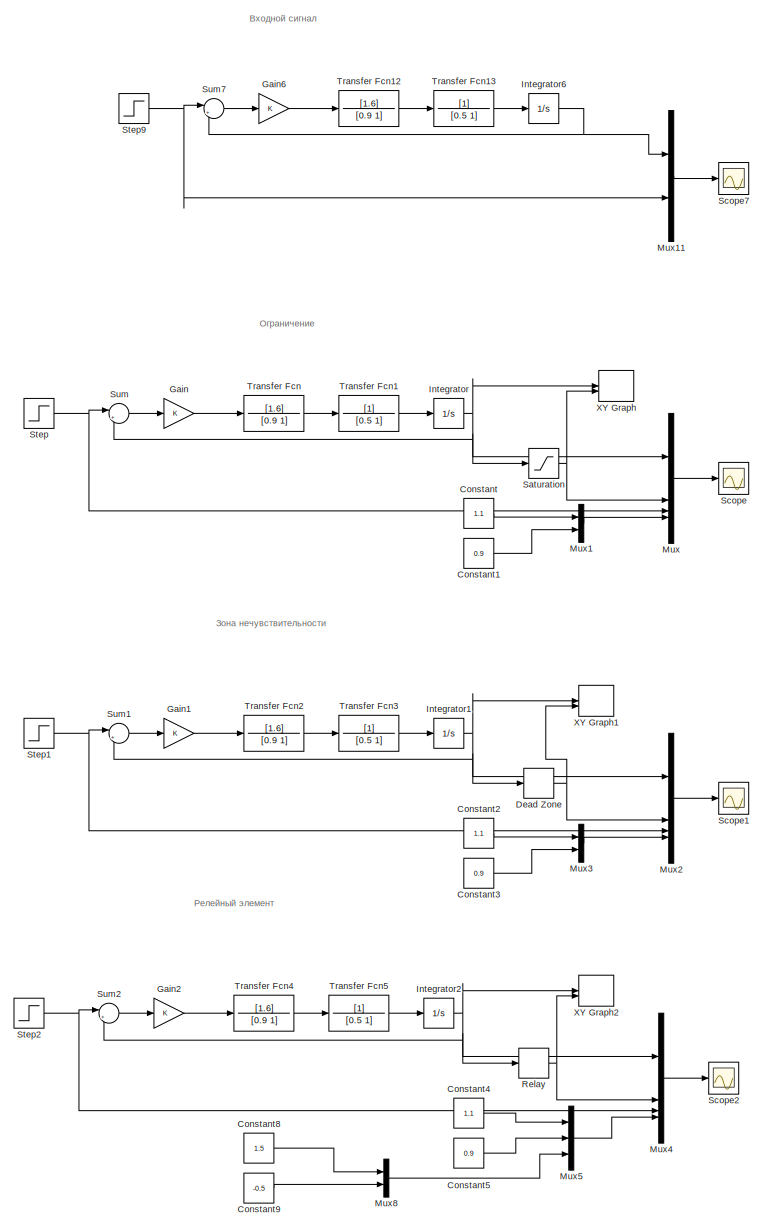
[diagram: root canvas - part 1/2, full width, top band]
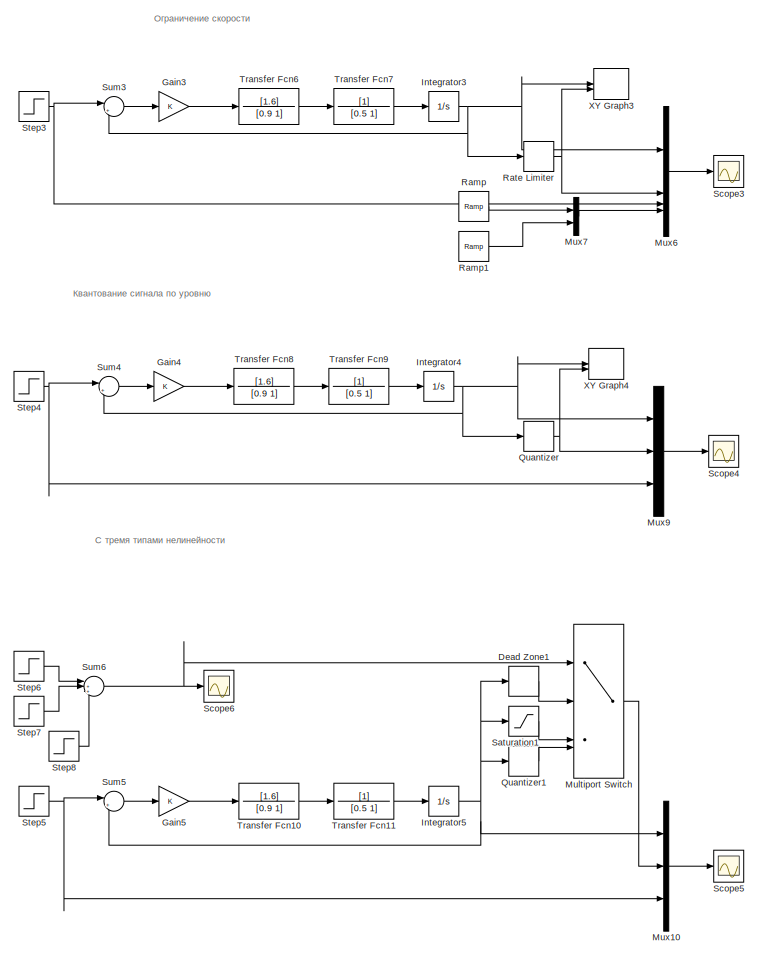
[diagram: root canvas - part 2/2, full width, bottom band]
MODEL slx_9a68090f63fd
KIND model
CONFIG AbsTol = auto
CONFIG EnableMultiTasking = off
CONFIG FixedStep = auto
CONFIG MaxStep = auto
CONFIG MinStep = auto
CONFIG RelTol = 1e-3
CONFIG SampleTimeConstraint = Unconstrained
CONFIG SolverName = VariableStepAuto
CONFIG StartTime = 0.0
CONFIG StopTime = 30
BLOCK [Constant] Constant
  Value = 1.1
BLOCK [Constant] Constant1
  Value = 0.9
BLOCK [Constant] Constant2
  Value = 1.1
BLOCK [Constant] Constant3
  Value = 0.9
BLOCK [Constant] Constant4
  Value = 1.1
BLOCK [Constant] Constant5
  Value = 0.9
BLOCK [Constant] Constant8
  Value = 1.5
BLOCK [Constant] Constant9
  Value = -0.5
BLOCK [DeadZone] Dead Zone
  LowerValue = 0.9
  UpperValue = 1.1
BLOCK [DeadZone] Dead Zone1
  LowerValue = 0.9
  UpperValue = 1.1
BLOCK [Gain] Gain
BLOCK [Gain] Gain1
BLOCK [Gain] Gain2
BLOCK [Gain] Gain3
BLOCK [Gain] Gain4
BLOCK [Gain] Gain5
BLOCK [Gain] Gain6
BLOCK [Integrator] Integrator
BLOCK [Integrator] Integrator1
BLOCK [Integrator] Integrator2
BLOCK [Integrator] Integrator3
BLOCK [Integrator] Integrator4
BLOCK [Integrator] Integrator5
BLOCK [Integrator] Integrator6
BLOCK [MultiPortSwitch] Multiport Switch
  InputSameDT = off
  SaturateOnIntegerOverflow = off
BLOCK [Mux] Mux
  DisplayOption = bar
BLOCK [Mux] Mux1
  DisplayOption = bar
  Inputs = 2
BLOCK [Mux] Mux10
  DisplayOption = bar
  Inputs = 3
BLOCK [Mux] Mux11
  DisplayOption = bar
  Inputs = 2
BLOCK [Mux] Mux2
  DisplayOption = bar
BLOCK [Mux] Mux3
  DisplayOption = bar
  Inputs = 2
BLOCK [Mux] Mux4
  DisplayOption = bar
BLOCK [Mux] Mux5
  DisplayOption = bar
  Inputs = 3
BLOCK [Mux] Mux6
  DisplayOption = bar
BLOCK [Mux] Mux7
  DisplayOption = bar
  Inputs = 2
BLOCK [Mux] Mux8
  DisplayOption = bar
  Inputs = 2
BLOCK [Mux] Mux9
  DisplayOption = bar
  Inputs = 3
BLOCK [Quantizer] Quantizer
  QuantizationInterval = 0.2
BLOCK [Quantizer] Quantizer1
  QuantizationInterval = 0.2
BLOCK [Reference] Ramp  REF=simulink/Sources/Ramp
  SourceBlock = simulink/Sources/Ramp
  SourceType = Ramp
BLOCK [Reference] Ramp1  REF=simulink/Sources/Ramp
  SourceBlock = simulink/Sources/Ramp
  SourceType = Ramp
BLOCK [RateLimiter] Rate Limiter
  FallingSlewLimit = -0.15
  RisingSlewLimit = 0.3
  SampleTimeMode = inherited
BLOCK [Relay] Relay
  OffOutputValue = -0.5
  OffSwitchValue = 0.9
  OnOutputValue = 1.5
  OnSwitchValue = 1.1
BLOCK [Saturate] Saturation
  LowerLimit = 0.9
  UpperLimit = 1.1
BLOCK [Saturate] Saturation1
  LowerLimit = 0.9
  UpperLimit = 1.1
BLOCK [Scope] Scope
  Floating = off
  NumInputPorts = 1
  ScopeSpecificationString = Simulink.scopes.TimeScopeBlockCfg('CurrentConfiguration', extmgr.ConfigurationSet(extmgr.Configuration('Core','General UI',true,'FigureColor',[1 1 1]),extmgr.Configuration('Core','Source UI',true),extmgr.Configuration('Sources','WiredSimulink',true),extmgr.Configuration('Visuals','Time Domain',true,'SerializedDisplays',{struct('MinYLimReal','-0.19648','MaxYLimReal','1.76835','YLabelReal','','MinYL...<+2006ch>
BLOCK [Scope] Scope1
  Floating = off
  NumInputPorts = 1
  ScopeSpecificationString = Simulink.scopes.TimeScopeBlockCfg('CurrentConfiguration', extmgr.ConfigurationSet(extmgr.Configuration('Core','General UI',true,'FigureColor',[1 1 1]),extmgr.Configuration('Core','Source UI',true),extmgr.Configuration('Sources','WiredSimulink',true,'DataLoggingVariableName','ScopeData1'),extmgr.Configuration('Visuals','Time Domain',true,'SerializedDisplays',{struct('MinYLimReal','-1.20898','MaxYLi...<+2047ch>
BLOCK [Scope] Scope2
  Floating = off
  NumInputPorts = 1
  ScopeSpecificationString = Simulink.scopes.TimeScopeBlockCfg('CurrentConfiguration', extmgr.ConfigurationSet(extmgr.Configuration('Core','General UI',true,'FigureColor',[1 1 1]),extmgr.Configuration('Core','Source UI',true),extmgr.Configuration('Sources','WiredSimulink',true,'DataLoggingVariableName','ScopeData2'),extmgr.Configuration('Visuals','Time Domain',true,'SerializedDisplays',{struct('MinYLimReal','-0.75898','MaxYLi...<+2244ch>
BLOCK [Scope] Scope3
  Floating = off
  NumInputPorts = 1
  ScopeSpecificationString = Simulink.scopes.TimeScopeBlockCfg('CurrentConfiguration', extmgr.ConfigurationSet(extmgr.Configuration('Core','General UI',true,'FigureColor',[1 1 1]),extmgr.Configuration('Core','Source UI',true),extmgr.Configuration('Sources','WiredSimulink',true,'DataLoggingVariableName','ScopeData3'),extmgr.Configuration('Visuals','Time Domain',true,'SerializedDisplays',{struct('MinYLimReal','-0.2086','MaxYLim...<+2082ch>
BLOCK [Scope] Scope4
  Floating = off
  NumInputPorts = 1
  ScopeSpecificationString = Simulink.scopes.TimeScopeBlockCfg('CurrentConfiguration', extmgr.ConfigurationSet(extmgr.Configuration('Core','General UI',true,'FigureColor',[1 1 1]),extmgr.Configuration('Core','Source UI',true),extmgr.Configuration('Sources','WiredSimulink',true,'DataLoggingVariableName','ScopeData1','SampleTime','0.001'),extmgr.Configuration('Visuals','Time Domain',true,'SerializedDisplays',{struct('MinYLimRea...<+2086ch>
BLOCK [Scope] Scope5
  Floating = off
  NumInputPorts = 1
  ScopeSpecificationString = Simulink.scopes.TimeScopeBlockCfg('CurrentConfiguration', extmgr.ConfigurationSet(extmgr.Configuration('Core','General UI',true,'FigureColor',[1 1 1]),extmgr.Configuration('Core','Source UI',true),extmgr.Configuration('Sources','WiredSimulink',true,'DataLoggingVariableName','ScopeData2','SampleTime','0.001'),extmgr.Configuration('Visuals','Time Domain',true,'SerializedDisplays',{struct('MinYLimRea...<+2208ch>
BLOCK [Scope] Scope6
  Floating = off
  NumInputPorts = 1
  ScopeSpecificationString = Simulink.scopes.TimeScopeBlockCfg('CurrentConfiguration', extmgr.ConfigurationSet(extmgr.Configuration('Core','General UI',true,'FigureColor',[1 1 1]),extmgr.Configuration('Core','Source UI',true),extmgr.Configuration('Sources','WiredSimulink',true,'DataLoggingVariableName','ScopeData3','SampleTime','0.001'),extmgr.Configuration('Visuals','Time Domain',true,'SerializedDisplays',{struct('MinYLimRea...<+2268ch>
BLOCK [Scope] Scope7
  Floating = off
  NumInputPorts = 1
  ScopeSpecificationString = Simulink.scopes.TimeScopeBlockCfg('CurrentConfiguration', extmgr.ConfigurationSet(extmgr.Configuration('Core','General UI',true,'FigureColor',[1 1 1]),extmgr.Configuration('Core','Source UI',true),extmgr.Configuration('Sources','WiredSimulink',true,'DataLoggingVariableName','ScopeData1'),extmgr.Configuration('Visuals','Time Domain',true,'SerializedDisplays',{struct('MinYLimReal','-0.19648','MaxYLi...<+2026ch>
BLOCK [Step] Step
  SampleTime = 0
  Time = 0
BLOCK [Step] Step1
  SampleTime = 0
  Time = 0
BLOCK [Step] Step2
  SampleTime = 0
  Time = 0
BLOCK [Step] Step3
  SampleTime = 0
  Time = 0
BLOCK [Step] Step4
  SampleTime = 0
  Time = 0
BLOCK [Step] Step5
  SampleTime = 0
  Time = 0
BLOCK [Step] Step6
  SampleTime = 0
  Time = 0
BLOCK [Step] Step7
  SampleTime = 0
  Time = 10
BLOCK [Step] Step8
  SampleTime = 0
  Time = 20
BLOCK [Step] Step9
  SampleTime = 0
  Time = 0
BLOCK [Sum] Sum
  Inputs = |+-
BLOCK [Sum] Sum1
  Inputs = |+-
BLOCK [Sum] Sum2
  Inputs = |+-
BLOCK [Sum] Sum3
  Inputs = |+-
BLOCK [Sum] Sum4
  Inputs = |+-
BLOCK [Sum] Sum5
  Inputs = |+-
BLOCK [Sum] Sum6
  Inputs = |+++
BLOCK [Sum] Sum7
  Inputs = |+-
BLOCK [TransferFcn] Transfer Fcn
  Denominator = [0.9 1]
  Numerator = [1.6]
BLOCK [TransferFcn] Transfer Fcn1
  Denominator = [0.5 1]
BLOCK [TransferFcn] Transfer Fcn10
  Denominator = [0.9 1]
  Numerator = [1.6]
BLOCK [TransferFcn] Transfer Fcn11
  Denominator = [0.5 1]
BLOCK [TransferFcn] Transfer Fcn12
  Denominator = [0.9 1]
  Numerator = [1.6]
BLOCK [TransferFcn] Transfer Fcn13
  Denominator = [0.5 1]
BLOCK [TransferFcn] Transfer Fcn2
  Denominator = [0.9 1]
  Numerator = [1.6]
BLOCK [TransferFcn] Transfer Fcn3
  Denominator = [0.5 1]
BLOCK [TransferFcn] Transfer Fcn4
  Denominator = [0.9 1]
  Numerator = [1.6]
BLOCK [TransferFcn] Transfer Fcn5
  Denominator = [0.5 1]
BLOCK [TransferFcn] Transfer Fcn6
  Denominator = [0.9 1]
  Numerator = [1.6]
BLOCK [TransferFcn] Transfer Fcn7
  Denominator = [0.5 1]
BLOCK [TransferFcn] Transfer Fcn8
  Denominator = [0.9 1]
  Numerator = [1.6]
BLOCK [TransferFcn] Transfer Fcn9
  Denominator = [0.5 1]
BLOCK [Record] XY Graph
  CompatibilityTag = XY
  FileSettingsInternal = {"entries":[{"content":{"excelSettings":{"content":{},"type":"Streamout.ExcelSettings"}},"type":"Streamout.FileSettingStorage","uuid":""}],"packageUris":["http:\/\/schema.mathworks.com\/mf0\/streamout_blocks\/R2020a"],"version":"1.0"}  <repeated x5 — deduplicated; at blocks: XY Graph, XY Graph1, XY Graph2, XY Graph3, XY Graph4>
  Layout = [1 1]
  SignalsInternal = {"entries":[{"content":{"signals":[{"content":{"blockPath":[],"dimensions":[1],"domain":"","lineColor":"#a2142f","plots":[1],"port":1,"sid":[""],"signalID":423,"signalName":"Integrator"},"type":"RecordBlkView.Signal","uuid":""},{"content":{"blockPath":[],"dimensions":[1],"domain":"","lineColor":"#139fff","plots":[1],"port":2,"sid":[""],"signalID":427,"signalName":"Saturation"},"type":"RecordBlkVie...<+166ch>
  VisualizationBindings = {"xyplotplugin":{"info":[{"series":[{"bindingParametersList":[{"parameter":"X-Axis","signalID":423,"signalName":"Integrator"},{"parameter":"Y-Axis","signalID":427,"signalName":"Saturation"}],"seriesID":18161}],"subplotID":1}]}}
BLOCK [Record] XY Graph1
  CompatibilityTag = XY
  Layout = [1 1]
  SignalsInternal = {"entries":[{"content":{"signals":[{"content":{"blockPath":[],"dimensions":[1],"domain":"","lineColor":"#a2142f","plots":[1],"port":1,"sid":[""],"signalID":431,"signalName":"Integrator1"},"type":"RecordBlkView.Signal","uuid":""},{"content":{"blockPath":[],"dimensions":[1],"domain":"","lineColor":"#139fff","plots":[1],"port":2,"sid":[""],"signalID":435,"signalName":"Dead Zone"},"type":"RecordBlkVie...<+166ch>
  VisualizationBindings = {"xyplotplugin":{"info":[{"series":[{"bindingParametersList":[{"parameter":"X-Axis","signalID":431,"signalName":"Integrator1"},{"parameter":"Y-Axis","signalID":435,"signalName":"Dead Zone"}],"seriesID":10553},{"bindingParametersList":[{"parameter":"X-Axis","signalID":431,"signalName":"Integrator1"},{"parameter":"Y-Axis","signalID":435,"signalName":"Dead Zone"}],"seriesID":8487}],"subplotID":1}]}}
BLOCK [Record] XY Graph2
  CompatibilityTag = XY
  Layout = [1 1]
  SignalsInternal = {"entries":[{"content":{"signals":[{"content":{"blockPath":[],"dimensions":[1],"domain":"","lineColor":"#a2142f","plots":[1],"port":1,"sid":[""],"signalID":439,"signalName":"Integrator2"},"type":"RecordBlkView.Signal","uuid":""},{"content":{"blockPath":[],"dimensions":[1],"domain":"","lineColor":"#139fff","plots":[1],"port":2,"sid":[""],"signalID":443,"signalName":"Relay"},"type":"RecordBlkView.Si...<+162ch>
  VisualizationBindings = {"xyplotplugin":{"info":[{"series":[{"bindingParametersList":[{"parameter":"X-Axis","signalID":439,"signalName":"Integrator2"},{"parameter":"Y-Axis","signalID":443,"signalName":"Relay"}],"seriesID":18363},{"bindingParametersList":[{"parameter":"X-Axis","signalID":443,"signalName":"Relay"}],"seriesID":436}],"subplotID":1}]}}
BLOCK [Record] XY Graph3
  CompatibilityTag = XY
  Layout = [1 1]
  SignalsInternal = {"entries":[{"content":{"signals":[{"content":{"blockPath":[],"dimensions":[1],"domain":"","lineColor":"#a2142f","plots":[1],"port":1,"sid":[""],"signalID":447,"signalName":"Integrator3"},"type":"RecordBlkView.Signal","uuid":""},{"content":{"blockPath":[],"dimensions":[1],"domain":"","lineColor":"#139fff","plots":[1],"port":2,"sid":[""],"signalID":451,"signalName":"Rate Limiter"},"type":"RecordBlk...<+169ch>
  VisualizationBindings = {"xyplotplugin":{"info":[{"series":[{"bindingParametersList":[{"parameter":"X-Axis","signalID":447,"signalName":"Integrator3"},{"parameter":"Y-Axis","signalID":451,"signalName":"Rate Limiter"}],"seriesID":46871},{"bindingParametersList":[{"parameter":"X-Axis","signalID":451,"signalName":"Rate Limiter"}],"seriesID":436}],"subplotID":1}]}}
BLOCK [Record] XY Graph4
  CompatibilityTag = XY
  Layout = [1 1]
  SignalsInternal = {"entries":[{"content":{"signals":[{"content":{"blockPath":[],"dimensions":[1],"domain":"","lineColor":"#a2142f","plots":[1],"port":1,"sid":[""],"signalID":455,"signalName":"Integrator4"},"type":"RecordBlkView.Signal","uuid":""},{"content":{"blockPath":[],"dimensions":[1],"domain":"","lineColor":"#139fff","plots":[1],"port":2,"sid":[""],"signalID":459,"signalName":"Quantizer"},"type":"RecordBlkVie...<+166ch>
  VisualizationBindings = {"xyplotplugin":{"info":[{"series":[{"bindingParametersList":[{"parameter":"X-Axis","signalID":455,"signalName":"Integrator4"},{"parameter":"Y-Axis","signalID":459,"signalName":"Quantizer"}],"seriesID":11349},{"bindingParametersList":[{"parameter":"X-Axis","signalID":459,"signalName":"Quantizer"}],"seriesID":436}],"subplotID":1}]}}
ANNOTATION (root): Входной сигнал
ANNOTATION (root): Зона нечувствительности
ANNOTATION (root): Квантование сигнала по уровню
ANNOTATION (root): Ограничение скорости
ANNOTATION (root): Ограничение
ANNOTATION (root): Релейный элемент
ANNOTATION (root): С тремя типами нелинейности
LINE Constant1:1 -> Mux1:2
LINE Constant2:1 -> Mux3:1
LINE Constant3:1 -> Mux3:2
LINE Constant4:1 -> Mux5:1
LINE Constant5:1 -> Mux5:2
LINE Constant8:1 -> Mux8:1
LINE Constant9:1 -> Mux8:2
LINE Constant:1 -> Mux1:1
LINE Dead Zone1:1 -> Multiport Switch:2
NET Dead Zone:1 -> Mux2:2, XY Graph1:2
LINE Gain1:1 -> Transfer Fcn2:1
LINE Gain2:1 -> Transfer Fcn4:1
LINE Gain3:1 -> Transfer Fcn6:1
LINE Gain4:1 -> Transfer Fcn8:1
LINE Gain5:1 -> Transfer Fcn10:1
LINE Gain6:1 -> Transfer Fcn12:1
LINE Gain:1 -> Transfer Fcn:1
NET Integrator1:1 -> Dead Zone:1, Mux2:1, Sum1:2, XY Graph1:1
NET Integrator2:1 -> Mux4:1, Relay:1, Sum2:2, XY Graph2:1
NET Integrator3:1 -> Mux6:1, Rate Limiter:1, Sum3:2, XY Graph3:1
NET Integrator4:1 -> Mux9:1, Quantizer:1, Sum4:2, XY Graph4:1
NET Integrator5:1 -> Dead Zone1:1, Mux10:1, Quantizer1:1, Saturation1:1, Sum5:2
NET Integrator6:1 -> Mux11:1, Sum7:2
NET Integrator:1 -> Mux:1, Saturation:1, Sum:2, XY Graph:1
LINE Multiport Switch:1 -> Mux10:2
LINE Mux10:1 -> Scope5:1
LINE Mux11:1 -> Scope7:1
LINE Mux1:1 -> Mux:4
LINE Mux2:1 -> Scope1:1
LINE Mux3:1 -> Mux2:4
LINE Mux4:1 -> Scope2:1
LINE Mux5:1 -> Mux4:4
LINE Mux6:1 -> Scope3:1
LINE Mux7:1 -> Mux6:4
LINE Mux8:1 -> Mux5:3
LINE Mux9:1 -> Scope4:1
LINE Mux:1 -> Scope:1
LINE Quantizer1:1 -> Multiport Switch:4
NET Quantizer:1 -> Mux9:2, XY Graph4:2
LINE Ramp1:1 -> Mux7:2
LINE Ramp:1 -> Mux7:1
NET Rate Limiter:1 -> Mux6:2, XY Graph3:2
NET Relay:1 -> Mux4:2, XY Graph2:2
LINE Saturation1:1 -> Multiport Switch:3
NET Saturation:1 -> Mux:2, XY Graph:2
NET Step1:1 -> Mux2:3, Sum1:1
NET Step2:1 -> Mux4:3, Sum2:1
NET Step3:1 -> Mux6:3, Sum3:1
NET Step4:1 -> Mux9:3, Sum4:1
NET Step5:1 -> Mux10:3, Sum5:1
LINE Step6:1 -> Sum6:1
LINE Step7:1 -> Sum6:2
LINE Step8:1 -> Sum6:3
NET Step9:1 -> Mux11:2, Sum7:1
NET Step:1 -> Mux:3, Sum:1
LINE Sum1:1 -> Gain1:1
LINE Sum2:1 -> Gain2:1
LINE Sum3:1 -> Gain3:1
LINE Sum4:1 -> Gain4:1
LINE Sum5:1 -> Gain5:1
NET Sum6:1 -> Multiport Switch:1, Scope6:1
LINE Sum7:1 -> Gain6:1
LINE Sum:1 -> Gain:1
LINE Transfer Fcn10:1 -> Transfer Fcn11:1
LINE Transfer Fcn11:1 -> Integrator5:1
LINE Transfer Fcn12:1 -> Transfer Fcn13:1
LINE Transfer Fcn13:1 -> Integrator6:1
LINE Transfer Fcn1:1 -> Integrator:1
LINE Transfer Fcn2:1 -> Transfer Fcn3:1
LINE Transfer Fcn3:1 -> Integrator1:1
LINE Transfer Fcn4:1 -> Transfer Fcn5:1
LINE Transfer Fcn5:1 -> Integrator2:1
LINE Transfer Fcn6:1 -> Transfer Fcn7:1
LINE Transfer Fcn7:1 -> Integrator3:1
LINE Transfer Fcn8:1 -> Transfer Fcn9:1
LINE Transfer Fcn9:1 -> Integrator4:1
LINE Transfer Fcn:1 -> Transfer Fcn1:1
note: NET lines group one-source signal fan-out (src -> all destinations, sorted); 1:1 wires keep LINE
